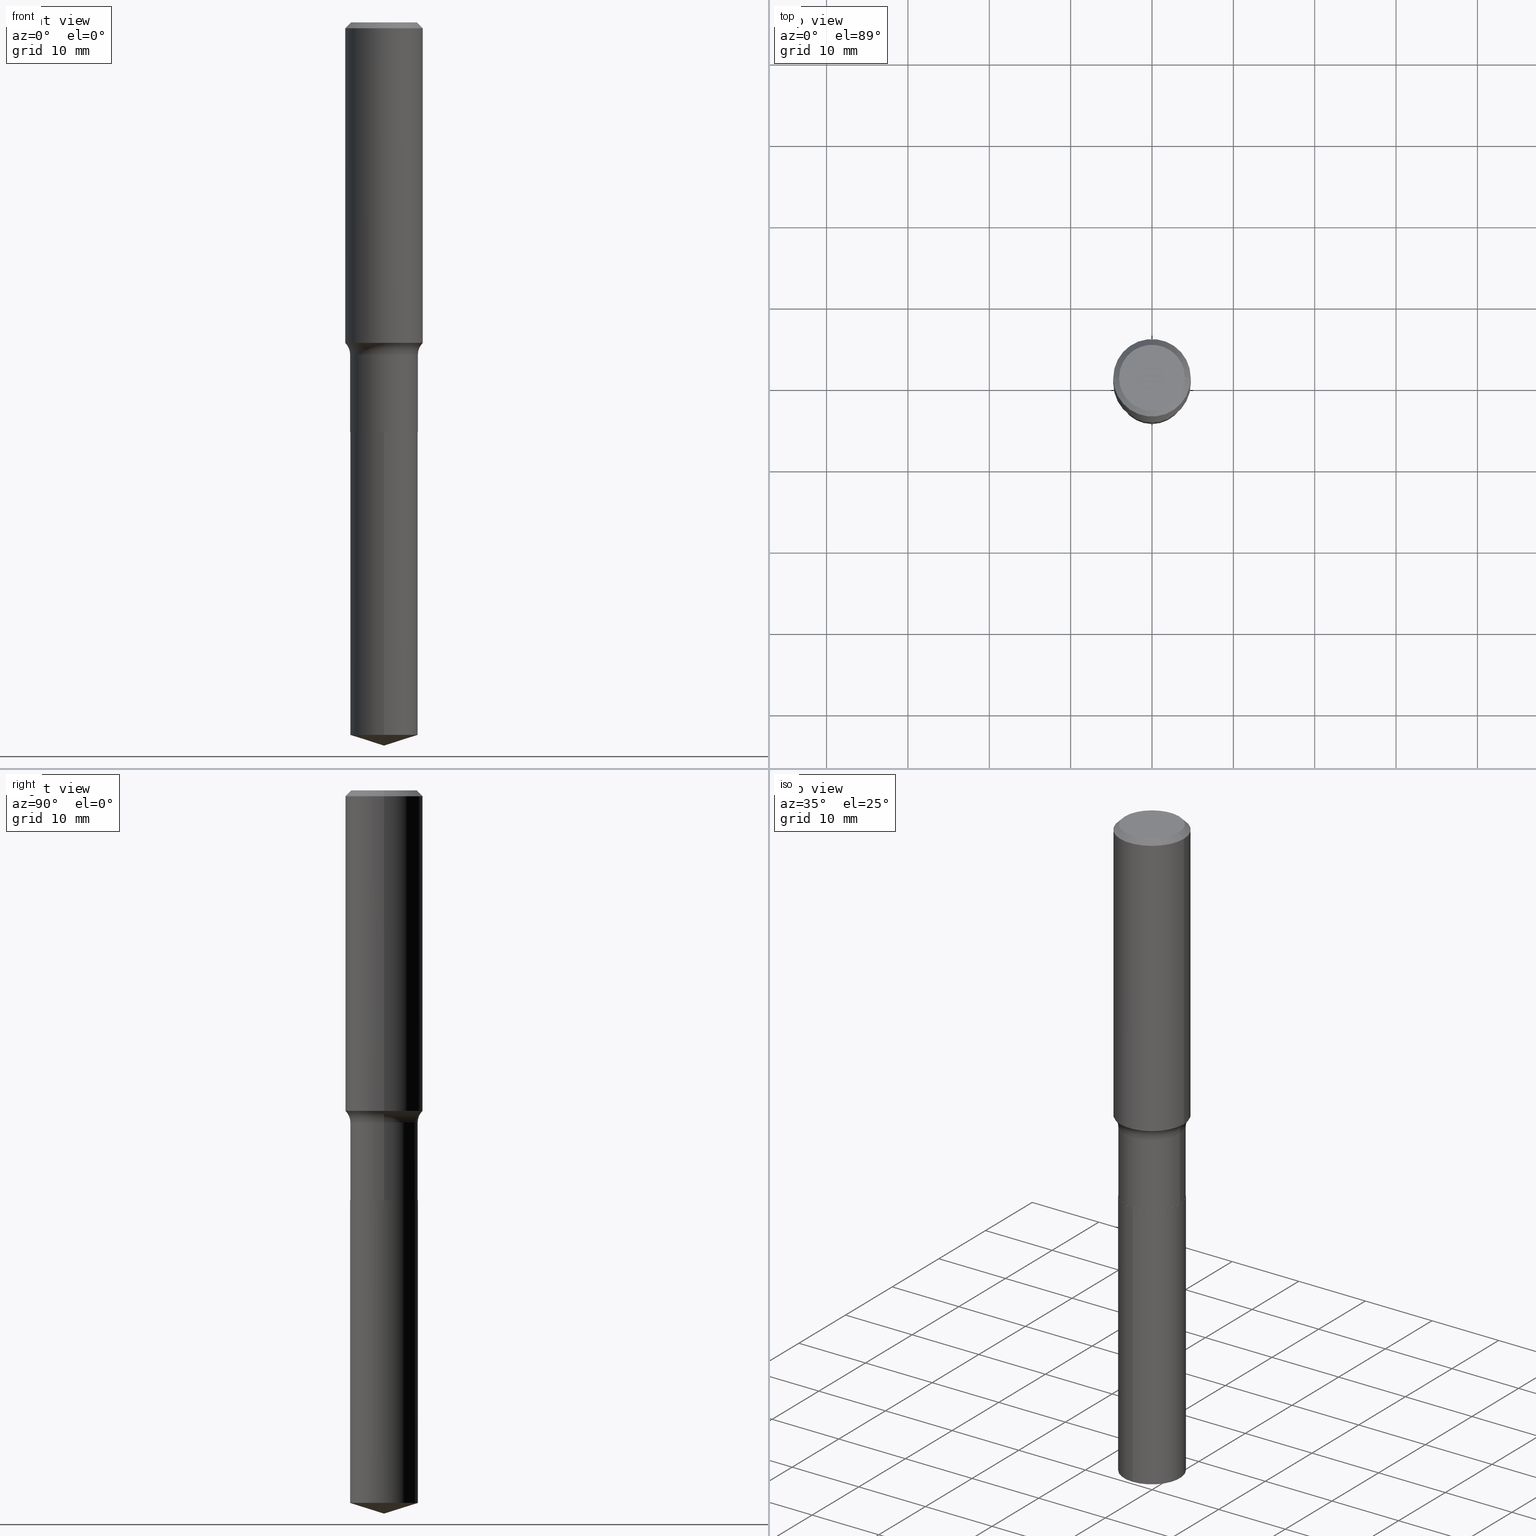
[diagram: canonical four-view strip — front | top / right | iso, engineering-drawing reading convention]
A machine part, canonical four-view strip (front | top / right | iso — engineering-drawing reading convention). The complete STEP part file that produces these views, byte-faithful:
ISO-10303-21;
HEADER;
FILE_DESCRIPTION (( 'STEP AP203' ),
    '1' );
FILE_NAME ('51350.STEP',
    '2024-04-19T12:50:37',
    ( '' ),
    ( '' ),
    'SwSTEP 2.0',
    'SolidWorks 2023',
    '' );
FILE_SCHEMA (( 'CONFIG_CONTROL_DESIGN' ));
ENDSEC;

DATA;
#1 = EDGE_CURVE ( 'NONE', #158, #292, #393, .T. ) ;
#2 = CARTESIAN_POINT ( 'NONE',  ( 3.929868371539513403E-29, -5.610810511520933351E-15, -1.606999999999999540 ) ) ;
#3 = ORIENTED_EDGE ( 'NONE', *, *, #244, .F. ) ;
#4 = FACE_OUTER_BOUND ( 'NONE', #288, .T. ) ;
#5 = VERTEX_POINT ( 'NONE', #474 ) ;
#6 = LINE ( 'NONE', #203, #468 ) ;
#7 = EDGE_LOOP ( 'NONE', ( #64, #153, #150, #65 ) ) ;
#8 = AXIS2_PLACEMENT_3D ( 'NONE', #143, #330, #149 ) ;
#9 = PLANE ( 'NONE',  #417 ) ;
#10 = ORIENTED_EDGE ( 'NONE', *, *, #117, .F. ) ;
#11 = ORIENTED_EDGE ( 'NONE', *, *, #200, .F. ) ;
#12 = CARTESIAN_POINT ( 'NONE',  ( 4.852543752113166066E-29, -6.928146420666452798E-15, -1.984299999999999731 ) ) ;
#13 = CARTESIAN_POINT ( 'NONE',  ( 3.793528331565033205E-29, -5.416153068292034593E-15, -1.551247892416518726 ) ) ;
#14 = CIRCLE ( 'NONE', #366, 0.1640500000000000014 ) ;
#15 = DIRECTION ( 'NONE',  ( -2.445468806185136597E-29, 3.491481338843145583E-15, 1.000000000000000000 ) ) ;
#16 = ADVANCED_FACE ( 'NONE', ( #252 ), #94, .T. ) ;
#17 = LINE ( 'NONE', #167, #53 ) ;
#18 = DIRECTION ( 'NONE',  ( 1.000000000000000000, -6.982962677686267499E-15, 4.876176775795935793E-29 ) ) ;
#19 = PERSON_AND_ORGANIZATION ( #235, #148 ) ;
#20 = DIRECTION ( 'NONE',  ( -2.445468806185136597E-29, 3.491481338843145583E-15, 1.000000000000000000 ) ) ;
#21 = CIRCLE ( 'NONE', #295, 0.1640499999999999459 ) ;
#22 = APPROVAL_PERSON_ORGANIZATION ( #26, #135, #25 ) ;
#23 = DIRECTION ( 'NONE',  ( 6.776566513254253404E-15, 0.9537169507482281539, 0.3007057995042689003 ) ) ;
#24 = ADVANCED_FACE ( 'NONE', ( #131 ), #250, .T. ) ;
#25 = APPROVAL_ROLE ( '' ) ;
#26 = PERSON_AND_ORGANIZATION ( #235, #148 ) ;
#27 = ORIENTED_EDGE ( 'NONE', *, *, #101, .F. ) ;
#28 = ADVANCED_FACE ( 'NONE', ( #318 ), #210, .T. ) ;
#29 = AXIS2_PLACEMENT_3D ( 'NONE', #276, #428, #89 ) ;
#30 = LOCAL_TIME ( 8, 50, 37.00000000000000000, #438 ) ;
#31 = DIRECTION ( 'NONE',  ( -1.000000000000000000, 7.105427357600997914E-15, 0.000000000000000000 ) ) ;
#32 = CC_DESIGN_DATE_AND_TIME_ASSIGNMENT ( #324, #473, ( #193 ) ) ;
#33 = DIRECTION ( 'NONE',  ( -2.445468806185136877E-29, 3.491481338843145188E-15, 1.000000000000000000 ) ) ;
#34 = DIRECTION ( 'NONE',  ( -2.445372018377083114E-29, 3.491619944493098232E-15, 1.000000000000000000 ) ) ;
#35 = ORIENTED_EDGE ( 'NONE', *, *, #465, .F. ) ;
#36 = AXIS2_PLACEMENT_3D ( 'NONE', #303, #157, #307 ) ;
#37 = CARTESIAN_POINT ( 'NONE',  ( -0.1640499999999999459, -5.102960237744538944E-15, -1.983799999999999786 ) ) ;
#38 = EDGE_LOOP ( 'NONE', ( #140, #142, #385, #254 ) ) ;
#39 = LINE ( 'NONE', #88, #211 ) ;
#40 = ORIENTED_EDGE ( 'NONE', *, *, #388, .F. ) ;
#41 = APPLICATION_CONTEXT ( 'configuration controlled 3d designs of mechanical parts and assemblies' ) ;
#42 = DIRECTION ( 'NONE',  ( -2.445468806185136597E-29, 3.491481338843145583E-15, 1.000000000000000000 ) ) ;
#43 = ADVANCED_FACE ( 'NONE', ( #396 ), #134, .T. ) ;
#44 = VERTEX_POINT ( 'NONE', #58 ) ;
#45 = AXIS2_PLACEMENT_3D ( 'NONE', #128, #192, #90 ) ;
#46 = DIRECTION ( 'NONE',  ( 6.982962677686265922E-15, 1.000000000000000000, -3.491619944493097838E-15 ) ) ;
#47 = EDGE_LOOP ( 'NONE', ( #416, #82, #332, #27 ) ) ;
#48 =( CONVERSION_BASED_UNIT ( 'INCH', #386 ) LENGTH_UNIT ( ) NAMED_UNIT ( #451 ) );
#49 = DIRECTION ( 'NONE',  ( -2.445468806185136597E-29, 3.491481338843145583E-15, 1.000000000000000000 ) ) ;
#50 = ADVANCED_FACE ( 'NONE', ( #207 ), #281, .T. ) ;
#51 = CARTESIAN_POINT ( 'NONE',  ( 0.1635500000000000009, -8.070209966602040664E-15, -1.984299999999999731 ) ) ;
#52 = DIRECTION ( 'NONE',  ( 1.000000000000000000, -6.982962677686265922E-15, 0.000000000000000000 ) ) ;
#53 = VECTOR ( 'NONE', #316, 39.37007874015748143 ) ;
#54 = COORDINATED_UNIVERSAL_TIME_OFFSET ( 5, 0, .BEHIND. ) ;
#55 = CC_DESIGN_APPROVAL ( #135, ( #193 ) ) ;
#56 = DIRECTION ( 'NONE',  ( 1.000000000000000000, -6.982962677686266711E-15, 0.000000000000000000 ) ) ;
#57 = PERSON_AND_ORGANIZATION_ROLE ( 'classification_officer' ) ;
#58 = CARTESIAN_POINT ( 'NONE',  ( 1.165645358014528773E-15, 0.1640499999999879555, -3.448275233684403140 ) ) ;
#59 = SHAPE_DEFINITION_REPRESENTATION ( #145, #439 ) ;
#60 = ADVANCED_FACE ( 'NONE', ( #472 ), #61, .T. ) ;
#61 = CYLINDRICAL_SURFACE ( 'NONE', #443, 0.1875000000000001110 ) ;
#62 = AXIS2_PLACEMENT_3D ( 'NONE', #96, #20, #18 ) ;
#63 = CIRCLE ( 'NONE', #8, 0.1593749999999999889 ) ;
#64 = ORIENTED_EDGE ( 'NONE', *, *, #225, .F. ) ;
#65 = ORIENTED_EDGE ( 'NONE', *, *, #444, .F. ) ;
#66 = EDGE_CURVE ( 'NONE', #373, #424, #163, .T. ) ;
#67 = DIRECTION ( 'NONE',  ( 2.438088387897960049E-29, -3.491481338843145188E-15, -1.000000000000000000 ) ) ;
#68 = AXIS2_PLACEMENT_3D ( 'NONE', #246, #399, #91 ) ;
#69 = AXIS2_PLACEMENT_3D ( 'NONE', #124, #430, #87 ) ;
#70 = CONICAL_SURFACE ( 'NONE', #36, 124.8659371009143086, 1.265363707695889905 ) ;
#71 = DIRECTION ( 'NONE',  ( -6.982962677686265922E-15, -1.000000000000000000, 3.500519750498725731E-15 ) ) ;
#72 = CARTESIAN_POINT ( 'NONE',  ( 0.1875000000000000555, -1.407503414721139514E-15, -0.02812500000000019151 ) ) ;
#73 = EDGE_LOOP ( 'NONE', ( #257, #197, #273, #188 ) ) ;
#74 = CARTESIAN_POINT ( 'NONE',  ( 6.877881017395743622E-31, -9.819791265496413635E-17, -0.02812500000000019151 ) ) ;
#75 = VECTOR ( 'NONE', #23, 39.37007874015748143 ) ;
#76 = CIRCLE ( 'NONE', #107, 0.1875000000000001943 ) ;
#77 = ORIENTED_EDGE ( 'NONE', *, *, #333, .F. ) ;
#78 = FACE_OUTER_BOUND ( 'NONE', #191, .T. ) ;
#79 = DIRECTION ( 'NONE',  ( -2.445468806185136597E-29, 3.491481338843145583E-15, 1.000000000000000000 ) ) ;
#80 = EDGE_CURVE ( 'NONE', #482, #44, #284, .T. ) ;
#81 = DIRECTION ( 'NONE',  ( -2.445468806185136597E-29, 3.491481338843145583E-15, 1.000000000000000000 ) ) ;
#82 = ORIENTED_EDGE ( 'NONE', *, *, #225, .T. ) ;
#83 = CARTESIAN_POINT ( 'NONE',  ( 3.929868371539514524E-29, -5.610810511520934140E-15, -1.606999999999999762 ) ) ;
#84 = ORIENTED_EDGE ( 'NONE', *, *, #152, .T. ) ;
#85 = AXIS2_PLACEMENT_3D ( 'NONE', #2, #367, #379 ) ;
#86 = DIRECTION ( 'NONE',  ( 1.000000000000000000, -6.982962677686265922E-15, 4.876176775795935793E-29 ) ) ;
#87 = DIRECTION ( 'NONE',  ( -6.982962677686265133E-15, -1.000000000000000000, 3.330506545156066257E-15 ) ) ;
#88 = CARTESIAN_POINT ( 'NONE',  ( -0.1875000000000000555, 1.211107589411211094E-15, -0.02812500000000019151 ) ) ;
#89 = DIRECTION ( 'NONE',  ( 1.000000000000000000, -6.982962677686265922E-15, 0.000000000000000000 ) ) ;
#90 = DIRECTION ( 'NONE',  ( 1.000000000000000000, -6.982962677686267499E-15, 4.876227444496879000E-29 ) ) ;
#91 = DIRECTION ( 'NONE',  ( -6.982962677686265133E-15, -1.000000000000000000, 3.330506545156066257E-15 ) ) ;
#92 = VECTOR ( 'NONE', #33, 39.37007874015748143 ) ;
#93 = PERSON_AND_ORGANIZATION ( #235, #148 ) ;
#94 = CYLINDRICAL_SURFACE ( 'NONE', #173, 0.1640499999999999459 ) ;
#95 = CALENDAR_DATE ( 2024, 19, 4 ) ;
#96 = CARTESIAN_POINT ( 'NONE',  ( 0.000000000000000000, 0.000000000000000000, 0.000000000000000000 ) ) ;
#97 = APPROVAL_DATE_TIME ( #99, #135 ) ;
#98 = ORIENTED_EDGE ( 'NONE', *, *, #152, .F. ) ;
#99 = DATE_AND_TIME ( #290, #187 ) ;
#100 = CONICAL_SURFACE ( 'NONE', #304, 0.1635500000000000009, 0.7853981633975165577 ) ;
#101 = EDGE_CURVE ( 'NONE', #158, #179, #440, .T. ) ;
#102 = APPROVAL_DATE_TIME ( #392, #104 ) ;
#103 = EDGE_LOOP ( 'NONE', ( #365, #263, #229, #77 ) ) ;
#104 = APPROVAL ( #441, 'UNSPECIFIED' ) ;
#105 = DIRECTION ( 'NONE',  ( -2.445468806185136597E-29, 3.491481338843145583E-15, 1.000000000000000000 ) ) ;
#106 = AXIS2_PLACEMENT_3D ( 'NONE', #126, #81, #119 ) ;
#107 = AXIS2_PLACEMENT_3D ( 'NONE', #13, #350, #391 ) ;
#108 = CARTESIAN_POINT ( 'NONE',  ( 0.2420499999999999041, -7.301036627654892271E-15, -1.606999999999999540 ) ) ;
#109 = ADVANCED_FACE ( 'NONE', ( #127 ), #359, .T. ) ;
#110 = VERTEX_POINT ( 'NONE', #279 ) ;
#111 = CARTESIAN_POINT ( 'NONE',  ( 1.165645358014492485E-15, 0.1640499999999930625, -1.984300000000000175 ) ) ;
#112 = ORIENTED_EDGE ( 'NONE', *, *, #325, .T. ) ;
#113 = CARTESIAN_POINT ( 'NONE',  ( -0.1875000000000000555, -1.424907860923310518E-15, -0.02812500000000019151 ) ) ;
#114 = CLOSED_SHELL ( 'NONE', ( #139, #28, #60, #299, #16, #43, #161, #50, #291, #312, #455, #109 ) ) ;
#115 = VECTOR ( 'NONE', #190, 39.37007874015748143 ) ;
#116 = ORIENTED_EDGE ( 'NONE', *, *, #427, .T. ) ;
#117 = EDGE_CURVE ( 'NONE', #344, #110, #180, .T. ) ;
#118 = PRODUCT_DEFINITION_FORMATION_WITH_SPECIFIED_SOURCE ( 'ANY', '', #413, .NOT_KNOWN. ) ;
#119 = DIRECTION ( 'NONE',  ( 1.000000000000000000, -6.982962677686266711E-15, 0.000000000000000000 ) ) ;
#120 = ORIENTED_EDGE ( 'NONE', *, *, #66, .F. ) ;
#121 = CARTESIAN_POINT ( 'NONE',  ( -0.1635500000000000009, -5.766053776330809134E-15, -1.984299999999999731 ) ) ;
#122 = ORIENTED_EDGE ( 'NONE', *, *, #182, .T. ) ;
#123 = DIRECTION ( 'NONE',  ( 1.000000000000000000, -6.982962677686266711E-15, 0.000000000000000000 ) ) ;
#124 = CARTESIAN_POINT ( 'NONE',  ( 4.852543752113166066E-29, -6.928146420666452798E-15, -1.984299999999999731 ) ) ;
#125 = AXIS2_PLACEMENT_3D ( 'NONE', #83, #390, #123 ) ;
#126 = CARTESIAN_POINT ( 'NONE',  ( 4.851321017710073264E-29, -6.926400679997031294E-15, -1.983799999999999786 ) ) ;
#127 = FACE_OUTER_BOUND ( 'NONE', #38, .T. ) ;
#128 = CARTESIAN_POINT ( 'NONE',  ( -7.955031918821655674E-47, 1.135767727816384611E-32, 3.252968060235159768E-18 ) ) ;
#129 = CARTESIAN_POINT ( 'NONE',  ( 0.1593749999999999889, -1.238966577815982495E-15, 3.252968060243383104E-18 ) ) ;
#130 = CALENDAR_DATE ( 2024, 19, 4 ) ;
#131 = FACE_OUTER_BOUND ( 'NONE', #300, .T. ) ;
#132 = EDGE_CURVE ( 'NONE', #233, #216, #165, .T. ) ;
#133 = AXIS2_PLACEMENT_3D ( 'NONE', #437, #310, #466 ) ;
#134 = CYLINDRICAL_SURFACE ( 'NONE', #62, 0.1640499999999999459 ) ;
#135 = APPROVAL ( #479, 'UNSPECIFIED' ) ;
#136 = PERSON_AND_ORGANIZATION ( #235, #148 ) ;
#137 = CARTESIAN_POINT ( 'NONE',  ( 3.929868371539513403E-29, -5.610810511520933351E-15, -1.606999999999999540 ) ) ;
#138 = PERSON_AND_ORGANIZATION ( #235, #148 ) ;
#139 = ADVANCED_FACE ( 'NONE', ( #241 ), #100, .T. ) ;
#140 = ORIENTED_EDGE ( 'NONE', *, *, #433, .F. ) ;
#141 = COORDINATED_UNIVERSAL_TIME_OFFSET ( 5, 0, .BEHIND. ) ;
#142 = ORIENTED_EDGE ( 'NONE', *, *, #278, .T. ) ;
#143 = CARTESIAN_POINT ( 'NONE',  ( -7.955031918821655674E-47, 1.135767727816384611E-32, 3.252968060235159768E-18 ) ) ;
#144 = EDGE_CURVE ( 'NONE', #216, #233, #76, .T. ) ;
#145 = PRODUCT_DEFINITION_SHAPE ( 'NONE', 'NONE',  #193 ) ;
#146 = PLANE ( 'NONE',  #435 ) ;
#147 = CONICAL_SURFACE ( 'NONE', #410, 0.1875000000000000555, 0.7853981633974458365 ) ;
#148 = ORGANIZATION ( 'UNSPECIFIED', 'UNSPECIFIED', '' ) ;
#149 = DIRECTION ( 'NONE',  ( 1.000000000000000000, -6.982962677686267499E-15, 4.876227444496879000E-29 ) ) ;
#150 = ORIENTED_EDGE ( 'NONE', *, *, #101, .T. ) ;
#151 = DIRECTION ( 'NONE',  ( -1.000000000000000000, 6.982962677686265922E-15, -4.876176775795935793E-29 ) ) ;
#152 = EDGE_CURVE ( 'NONE', #156, #265, #17, .T. ) ;
#153 = ORIENTED_EDGE ( 'NONE', *, *, #398, .T. ) ;
#154 = FACE_OUTER_BOUND ( 'NONE', #213, .T. ) ;
#155 = AXIS2_PLACEMENT_3D ( 'NONE', #266, #34, #298 ) ;
#156 = VERTEX_POINT ( 'NONE', #129 ) ;
#157 = DIRECTION ( 'NONE',  ( -2.445372018377083114E-29, 3.491619944493098232E-15, 1.000000000000000000 ) ) ;
#158 = VERTEX_POINT ( 'NONE', #432 ) ;
#159 =( LENGTH_UNIT ( ) NAMED_UNIT ( * ) SI_UNIT ( $, .METRE. ) );
#160 = EDGE_LOOP ( 'NONE', ( #329, #422 ) ) ;
#161 = ADVANCED_FACE ( 'NONE', ( #262 ), #450, .F. ) ;
#162 = CARTESIAN_POINT ( 'NONE',  ( 3.929868371539514524E-29, -5.610810511520934140E-15, -1.606999999999999762 ) ) ;
#163 = CIRCLE ( 'NONE', #226, 0.1635500000000000009 ) ;
#164 = DIRECTION ( 'NONE',  ( -2.445468806185136597E-29, 3.491481338843145583E-15, 1.000000000000000000 ) ) ;
#165 = CIRCLE ( 'NONE', #29, 0.1875000000000001943 ) ;
#166 = DIRECTION ( 'NONE',  ( 2.445372018377082834E-29, -3.491619944493097838E-15, -1.000000000000000000 ) ) ;
#167 = CARTESIAN_POINT ( 'NONE',  ( 0.1875000000000000555, -1.384541287237126871E-15, -0.02812500000000019151 ) ) ;
#168 = CARTESIAN_POINT ( 'NONE',  ( 0.000000000000000000, 0.000000000000000000, 0.000000000000000000 ) ) ;
#169 = DESIGN_CONTEXT ( 'detailed design', #41, 'design' ) ;
#170 = DIRECTION ( 'NONE',  ( 1.000000000000000000, -6.982962677686266711E-15, 4.876176775795935793E-29 ) ) ;
#171 = CALENDAR_DATE ( 2024, 19, 4 ) ;
#172 = CARTESIAN_POINT ( 'NONE',  ( 0.000000000000000000, 0.000000000000000000, 0.000000000000000000 ) ) ;
#173 = AXIS2_PLACEMENT_3D ( 'NONE', #208, #164, #402 ) ;
#174 = DIRECTION ( 'NONE',  ( -6.982962677686266711E-15, -1.000000000000000000, 3.491481338843145583E-15 ) ) ;
#175 = DATE_AND_TIME ( #251, #405 ) ;
#176 = ORIENTED_EDGE ( 'NONE', *, *, #278, .F. ) ;
#177 = DIRECTION ( 'NONE',  ( 0.000000000000000000, 0.000000000000000000, 1.000000000000000000 ) ) ;
#178 = CC_DESIGN_PERSON_AND_ORGANIZATION_ASSIGNMENT ( #397, #57, ( #436 ) ) ;
#179 = VERTEX_POINT ( 'NONE', #335 ) ;
#180 = CIRCLE ( 'NONE', #69, 0.1640500000000000014 ) ;
#181 = LINE ( 'NONE', #452, #92 ) ;
#182 = EDGE_CURVE ( 'NONE', #233, #265, #181, .T. ) ;
#183 = DIRECTION ( 'NONE',  ( 1.000000000000000000, -6.982962677686265922E-15, 0.000000000000000000 ) ) ;
#184 = ORIENTED_EDGE ( 'NONE', *, *, #200, .T. ) ;
#185 = DIRECTION ( 'NONE',  ( -2.445468806185136597E-29, 3.491481338843145583E-15, 1.000000000000000000 ) ) ;
#186 = AXIS2_PLACEMENT_3D ( 'NONE', #108, #174, #258 ) ;
#187 = LOCAL_TIME ( 8, 50, 37.00000000000000000, #141 ) ;
#188 = ORIENTED_EDGE ( 'NONE', *, *, #182, .F. ) ;
#189 = EDGE_CURVE ( 'NONE', #44, #239, #14, .T. ) ;
#190 = DIRECTION ( 'NONE',  ( -2.445468806185136877E-29, 3.491481338843145188E-15, 1.000000000000000000 ) ) ;
#191 = EDGE_LOOP ( 'NONE', ( #338, #362, #462, #10 ) ) ;
#192 = DIRECTION ( 'NONE',  ( -2.445468806185136597E-29, 3.491481338843145583E-15, 1.000000000000000000 ) ) ;
#193 = PRODUCT_DEFINITION ( 'UNKNOWN', '', #118, #169 ) ;
#194 = ORIENTED_EDGE ( 'NONE', *, *, #189, .F. ) ;
#195 = FACE_OUTER_BOUND ( 'NONE', #231, .T. ) ;
#196 = CONICAL_SURFACE ( 'NONE', #313, 124.8659371009143086, 1.265363707695889905 ) ;
#197 = ORIENTED_EDGE ( 'NONE', *, *, #465, .T. ) ;
#198 = DIRECTION ( 'NONE',  ( -0.7071067811865957564, 7.493145998870527710E-15, 0.7071067811864992780 ) ) ;
#199 = ORIENTED_EDGE ( 'NONE', *, *, #363, .T. ) ;
#200 = EDGE_CURVE ( 'NONE', #5, #156, #63, .T. ) ;
#201 = CARTESIAN_POINT ( 'NONE',  ( -0.1635500000000000009, -5.763404549156697933E-15, -1.984299999999999731 ) ) ;
#202 = DIRECTION ( 'NONE',  ( 1.000000000000000000, -6.982962677686265922E-15, 0.000000000000000000 ) ) ;
#203 = CARTESIAN_POINT ( 'NONE',  ( -0.1875000000000001110, 1.332267629550188637E-15, -9.223003294227953596E-30 ) ) ;
#204 = CARTESIAN_POINT ( 'NONE',  ( 0.1640499999999999459, -1.145555027274431860E-15, 7.999368000693230140E-30 ) ) ;
#205 = AXIS2_PLACEMENT_3D ( 'NONE', #218, #369, #31 ) ;
#206 = APPLICATION_PROTOCOL_DEFINITION ( 'international standard', 'config_control_design', 1994, #371 ) ;
#207 = FACE_OUTER_BOUND ( 'NONE', #486, .T. ) ;
#208 = CARTESIAN_POINT ( 'NONE',  ( 0.000000000000000000, 0.000000000000000000, 0.000000000000000000 ) ) ;
#209 = DIRECTION ( 'NONE',  ( -2.445468806185136597E-29, 3.491481338843145583E-15, 1.000000000000000000 ) ) ;
#210 = CONICAL_SURFACE ( 'NONE', #490, 0.1875000000000000555, 0.7853981633974458365 ) ;
#211 = VECTOR ( 'NONE', #339, 39.37007874015748143 ) ;
#212 = AXIS2_PLACEMENT_3D ( 'NONE', #168, #177, #317 ) ;
#213 = EDGE_LOOP ( 'NONE', ( #120, #176 ) ) ;
#214 = MANIFOLD_SOLID_BREP ( 'Body-Move/Copy2[2]', #114 ) ;
#215 =( NAMED_UNIT ( * ) PLANE_ANGLE_UNIT ( ) SI_UNIT ( $, .RADIAN. ) );
#216 = VERTEX_POINT ( 'NONE', #409 ) ;
#217 = EDGE_LOOP ( 'NONE', ( #98, #11, #420, #343 ) ) ;
#218 = CARTESIAN_POINT ( 'NONE',  ( -0.2420499999999999041, -3.890941819613610941E-15, -1.606999999999999540 ) ) ;
#219 = ORIENTED_EDGE ( 'NONE', *, *, #370, .F. ) ;
#220 = CARTESIAN_POINT ( 'NONE',  ( -3.977515959410827837E-47, 5.678838639081923055E-33, 1.626484030117579884E-18 ) ) ;
#221 = CC_DESIGN_DATE_AND_TIME_ASSIGNMENT ( #175, #357, ( #436 ) ) ;
#222 = ORIENTED_EDGE ( 'NONE', *, *, #471, .F. ) ;
#223 = CARTESIAN_POINT ( 'NONE',  ( -0.1640499999999999459, 1.165645358014443970E-15, -8.069513015563170763E-30 ) ) ;
#224 = EDGE_LOOP ( 'NONE', ( #368, #453, #308, #116 ) ) ;
#225 = EDGE_CURVE ( 'NONE', #292, #336, #264, .T. ) ;
#226 = AXIS2_PLACEMENT_3D ( 'NONE', #320, #209, #52 ) ;
#227 = DIRECTION ( 'NONE',  ( -1.000000000000000000, 6.982962677686265922E-15, 0.000000000000000000 ) ) ;
#228 = CIRCLE ( 'NONE', #237, 0.1635500000000000009 ) ;
#229 = ORIENTED_EDGE ( 'NONE', *, *, #1, .F. ) ;
#230 = CYLINDRICAL_SURFACE ( 'NONE', #477, 0.1640500000000000014 ) ;
#231 = EDGE_LOOP ( 'NONE', ( #270, #306, #383 ) ) ;
#232 = CARTESIAN_POINT ( 'NONE',  ( 8.558802064319789219E-29, -1.222066980572584263E-14, -3.500000000000000000 ) ) ;
#233 = VERTEX_POINT ( 'NONE', #414 ) ;
#234 = CARTESIAN_POINT ( 'NONE',  ( 8.558802064319789219E-29, -1.222066980572584421E-14, -3.500000000000000000 ) ) ;
#235 = PERSON ( 'UNSPECIFIED', 'UNSPECIFIED', 'UNSPECIFIED', ('UNSPECIFIED'), ('UNSPECIFIED'), ('UNSPECIFIED') ) ;
#236 = EDGE_CURVE ( 'NONE', #44, #344, #372, .T. ) ;
#237 = AXIS2_PLACEMENT_3D ( 'NONE', #323, #185, #183 ) ;
#238 = VECTOR ( 'NONE', #348, 39.37007874015748143 ) ;
#239 = VERTEX_POINT ( 'NONE', #449 ) ;
#240 = FACE_OUTER_BOUND ( 'NONE', #160, .T. ) ;
#241 = FACE_OUTER_BOUND ( 'NONE', #103, .T. ) ;
#242 = DIRECTION ( 'NONE',  ( 1.000000000000000000, -6.982962677686265922E-15, 0.000000000000000000 ) ) ;
#243 = DIRECTION ( 'NONE',  ( 2.445468806185136597E-29, -3.491481338843145583E-15, -1.000000000000000000 ) ) ;
#244 = EDGE_CURVE ( 'NONE', #233, #179, #289, .T. ) ;
#245 = LINE ( 'NONE', #121, #275 ) ;
#246 = CARTESIAN_POINT ( 'NONE',  ( 4.852543752113166066E-29, -6.928146420666452798E-15, -1.984299999999999731 ) ) ;
#247 = TOROIDAL_SURFACE ( 'NONE', #425, 0.2420499999999999041, 0.07799999999999997213 ) ;
#248 =( GEOMETRIC_REPRESENTATION_CONTEXT ( 3 ) GLOBAL_UNCERTAINTY_ASSIGNED_CONTEXT ( ( #352 ) ) GLOBAL_UNIT_ASSIGNED_CONTEXT ( ( #48, #215, #351 ) ) REPRESENTATION_CONTEXT ( 'NONE', 'WORKASPACE' ) );
#249 = SECURITY_CLASSIFICATION_LEVEL ( 'unclassified' ) ;
#250 = CYLINDRICAL_SURFACE ( 'NONE', #68, 0.1640500000000000014 ) ;
#251 = CALENDAR_DATE ( 2024, 19, 4 ) ;
#252 = FACE_OUTER_BOUND ( 'NONE', #47, .T. ) ;
#253 = PERSON_AND_ORGANIZATION_ROLE ( 'creator' ) ;
#254 = ORIENTED_EDGE ( 'NONE', *, *, #398, .F. ) ;
#255 = CC_DESIGN_APPROVAL ( #104, ( #118 ) ) ;
#256 = APPROVAL_DATE_TIME ( #400, #382 ) ;
#257 = ORIENTED_EDGE ( 'NONE', *, *, #132, .T. ) ;
#258 = DIRECTION ( 'NONE',  ( 1.000000000000000000, -6.982962677686258033E-15, 0.000000000000000000 ) ) ;
#259 = CC_DESIGN_PERSON_AND_ORGANIZATION_ASSIGNMENT ( #283, #481, ( #193 ) ) ;
#260 = AXIS2_PLACEMENT_3D ( 'NONE', #272, #421, #429 ) ;
#261 = FACE_OUTER_BOUND ( 'NONE', #340, .T. ) ;
#262 = FACE_OUTER_BOUND ( 'NONE', #224, .T. ) ;
#263 = ORIENTED_EDGE ( 'NONE', *, *, #433, .T. ) ;
#264 = LINE ( 'NONE', #223, #115 ) ;
#265 = VERTEX_POINT ( 'NONE', #72 ) ;
#266 = CARTESIAN_POINT ( 'NONE',  ( 4.852543752113166066E-29, -6.928146420666452798E-15, -1.984299999999999731 ) ) ;
#267 = CIRCLE ( 'NONE', #45, 0.1593749999999999889 ) ;
#268 = CARTESIAN_POINT ( 'NONE',  ( 4.851321017710073264E-29, -6.926400679997031294E-15, -1.983799999999999786 ) ) ;
#269 = DIRECTION ( 'NONE',  ( 1.000000000000000000, -6.982962677686265922E-15, 0.000000000000000000 ) ) ;
#270 = ORIENTED_EDGE ( 'NONE', *, *, #412, .F. ) ;
#271 = EDGE_CURVE ( 'NONE', #110, #344, #445, .T. ) ;
#272 = CARTESIAN_POINT ( 'NONE',  ( 8.432507824162055663E-29, -1.203979154484285779E-14, -3.448275233684402696 ) ) ;
#273 = ORIENTED_EDGE ( 'NONE', *, *, #404, .F. ) ;
#274 = DIRECTION ( 'NONE',  ( -6.659769872151627355E-15, -0.9537169507482260444, 0.3007057995042755061 ) ) ;
#275 = VECTOR ( 'NONE', #198, 39.37007874015748143 ) ;
#276 = CARTESIAN_POINT ( 'NONE',  ( 3.793528331565033205E-29, -5.416153068292034593E-15, -1.551247892416518726 ) ) ;
#277 = CARTESIAN_POINT ( 'NONE',  ( 4.852543752113166066E-29, -6.928146420666452798E-15, -1.984299999999999731 ) ) ;
#278 = EDGE_CURVE ( 'NONE', #424, #373, #228, .T. ) ;
#279 = CARTESIAN_POINT ( 'NONE',  ( -1.145555027274383345E-15, -0.1640500000000069125, -1.984299999999999065 ) ) ;
#280 = DIRECTION ( 'NONE',  ( -2.445468806185136597E-29, 3.491481338843145583E-15, 1.000000000000000000 ) ) ;
#281 = CYLINDRICAL_SURFACE ( 'NONE', #374, 0.1875000000000001110 ) ;
#282 = DIRECTION ( 'NONE',  ( -2.445468806185136877E-29, 3.491481338843145188E-15, 1.000000000000000000 ) ) ;
#283 = PERSON_AND_ORGANIZATION ( #235, #148 ) ;
#284 = LINE ( 'NONE', #478, #75 ) ;
#285 = ADVANCED_FACE ( 'NONE', ( #261 ), #196, .T. ) ;
#286 = DIRECTION ( 'NONE',  ( -2.445372018377083114E-29, 3.491619944493098232E-15, 1.000000000000000000 ) ) ;
#287 = APPROVAL_STATUS ( 'not_yet_approved' ) ;
#288 = EDGE_LOOP ( 'NONE', ( #184, #377 ) ) ;
#289 = CIRCLE ( 'NONE', #186, 0.07799999999999999989 ) ;
#290 = CALENDAR_DATE ( 2024, 19, 4 ) ;
#291 = ADVANCED_FACE ( 'NONE', ( #487 ), #147, .T. ) ;
#292 = VERTEX_POINT ( 'NONE', #37 ) ;
#293 = VERTEX_POINT ( 'NONE', #113 ) ;
#294 = DIRECTION ( 'NONE',  ( 0.7071067811865957564, -2.468850131082761932E-15, 0.7071067811864992780 ) ) ;
#295 = AXIS2_PLACEMENT_3D ( 'NONE', #162, #15, #315 ) ;
#296 = APPROVAL_PERSON_ORGANIZATION ( #136, #104, #476 ) ;
#297 = DIRECTION ( 'NONE',  ( -6.982962677686265133E-15, -1.000000000000000000, 3.330506545156066257E-15 ) ) ;
#298 = DIRECTION ( 'NONE',  ( -6.982962677686265133E-15, -1.000000000000000000, 3.330506545156066257E-15 ) ) ;
#299 = ADVANCED_FACE ( 'NONE', ( #337 ), #247, .F. ) ;
#300 = EDGE_LOOP ( 'NONE', ( #199, #447, #302, #222 ) ) ;
#301 = CARTESIAN_POINT ( 'NONE',  ( 0.1635500000000000009, -8.070209966602040664E-15, -1.984299999999999731 ) ) ;
#302 = ORIENTED_EDGE ( 'NONE', *, *, #271, .F. ) ;
#303 = CARTESIAN_POINT ( 'NONE',  ( -8.771549479211627054E-28, 1.252449573748629302E-13, 35.87007874015748143 ) ) ;
#304 = AXIS2_PLACEMENT_3D ( 'NONE', #387, #49, #202 ) ;
#305 = CC_DESIGN_SECURITY_CLASSIFICATION ( #436, ( #118 ) ) ;
#306 = ORIENTED_EDGE ( 'NONE', *, *, #80, .T. ) ;
#307 = DIRECTION ( 'NONE',  ( -6.982962677686265922E-15, -1.000000000000000000, 3.500519750498725731E-15 ) ) ;
#308 = ORIENTED_EDGE ( 'NONE', *, *, #244, .T. ) ;
#309 = CARTESIAN_POINT ( 'NONE',  ( 4.852543752113166066E-29, -6.928146420666452798E-15, -1.984299999999999731 ) ) ;
#310 = DIRECTION ( 'NONE',  ( -2.445468806185136597E-29, 3.491481338843145583E-15, 1.000000000000000000 ) ) ;
#311 = LINE ( 'NONE', #463, #238 ) ;
#312 = ADVANCED_FACE ( 'NONE', ( #4 ), #146, .F. ) ;
#313 = AXIS2_PLACEMENT_3D ( 'NONE', #454, #331, #71 ) ;
#314 = DIRECTION ( 'NONE',  ( 1.000000000000000000, -6.982962677686266711E-15, 4.876176775795935793E-29 ) ) ;
#315 = DIRECTION ( 'NONE',  ( 1.000000000000000000, -6.982962677686266711E-15, 0.000000000000000000 ) ) ;
#316 = DIRECTION ( 'NONE',  ( 0.7071067811865457964, -7.319954787623249734E-15, -0.7071067811865492381 ) ) ;
#317 = DIRECTION ( 'NONE',  ( 1.000000000000000000, 0.000000000000000000, 0.000000000000000000 ) ) ;
#318 = FACE_OUTER_BOUND ( 'NONE', #458, .T. ) ;
#319 = CIRCLE ( 'NONE', #106, 0.1640499999999999459 ) ;
#320 = CARTESIAN_POINT ( 'NONE',  ( 4.852543752113166066E-29, -6.928146420666452798E-15, -1.984299999999999731 ) ) ;
#321 = AXIS2_PLACEMENT_3D ( 'NONE', #461, #42, #269 ) ;
#322 = PERSON_AND_ORGANIZATION_ROLE ( 'design_owner' ) ;
#323 = CARTESIAN_POINT ( 'NONE',  ( 4.852543752113166066E-29, -6.928146420666452798E-15, -1.984299999999999731 ) ) ;
#324 = DATE_AND_TIME ( #95, #328 ) ;
#325 = EDGE_CURVE ( 'NONE', #216, #336, #349, .T. ) ;
#326 = ORIENTED_EDGE ( 'NONE', *, *, #444, .T. ) ;
#327 = CIRCLE ( 'NONE', #394, 0.1875000000000000555 ) ;
#328 = LOCAL_TIME ( 8, 50, 37.00000000000000000, #54 ) ;
#329 = ORIENTED_EDGE ( 'NONE', *, *, #271, .T. ) ;
#330 = DIRECTION ( 'NONE',  ( -2.445468806185136597E-29, 3.491481338843145583E-15, 1.000000000000000000 ) ) ;
#331 = DIRECTION ( 'NONE',  ( -2.445372018377083114E-29, 3.491619944493098232E-15, 1.000000000000000000 ) ) ;
#332 = ORIENTED_EDGE ( 'NONE', *, *, #427, .F. ) ;
#333 = EDGE_CURVE ( 'NONE', #373, #158, #457, .T. ) ;
#334 = CIRCLE ( 'NONE', #125, 0.1640499999999999459 ) ;
#335 = CARTESIAN_POINT ( 'NONE',  ( 0.1640499999999999459, -6.756365538795365803E-15, -1.606999999999999762 ) ) ;
#336 = VERTEX_POINT ( 'NONE', #419 ) ;
#337 = FACE_OUTER_BOUND ( 'NONE', #408, .T. ) ;
#338 = ORIENTED_EDGE ( 'NONE', *, *, #236, .F. ) ;
#339 = DIRECTION ( 'NONE',  ( -0.7071067811865457964, 2.468850131082238917E-15, -0.7071067811865492381 ) ) ;
#340 = EDGE_LOOP ( 'NONE', ( #380, #492, #194 ) ) ;
#341 = PLANE ( 'NONE',  #467 ) ;
#342 = CIRCLE ( 'NONE', #321, 0.1875000000000000555 ) ;
#343 = ORIENTED_EDGE ( 'NONE', *, *, #378, .T. ) ;
#344 = VERTEX_POINT ( 'NONE', #489 ) ;
#345 = DIRECTION ( 'NONE',  ( -2.445372018377083114E-29, 3.491619944493098232E-15, 1.000000000000000000 ) ) ;
#346 = DIRECTION ( 'NONE',  ( -1.000000000000000000, 6.982962677686265922E-15, 0.000000000000000000 ) ) ;
#347 = ADVANCED_FACE ( 'NONE', ( #78 ), #230, .T. ) ;
#348 = DIRECTION ( 'NONE',  ( -2.445372018377082834E-29, 3.491619944493097838E-15, 1.000000000000000000 ) ) ;
#349 = CIRCLE ( 'NONE', #205, 0.07799999999999999989 ) ;
#350 = DIRECTION ( 'NONE',  ( -2.445468806185136597E-29, 3.491481338843145583E-15, 1.000000000000000000 ) ) ;
#351 =( NAMED_UNIT ( * ) SI_UNIT ( $, .STERADIAN. ) SOLID_ANGLE_UNIT ( ) );
#352 = UNCERTAINTY_MEASURE_WITH_UNIT (LENGTH_MEASURE( 1.000000000000000082E-05 ), #48, 'distance_accuracy_value', 'NONE');
#353 = CARTESIAN_POINT ( 'NONE',  ( 0.000000000000000000, 0.000000000000000000, 0.000000000000000000 ) ) ;
#354 = COORDINATED_UNIVERSAL_TIME_OFFSET ( 5, 0, .BEHIND. ) ;
#355 = ADVANCED_FACE ( 'NONE', ( #240 ), #9, .F. ) ;
#356 = DIRECTION ( 'NONE',  ( -2.445468806185136597E-29, 3.491481338843145583E-15, 1.000000000000000000 ) ) ;
#357 = DATE_TIME_ROLE ( 'classification_date' ) ;
#358 = AXIS2_PLACEMENT_3D ( 'NONE', #268, #79, #56 ) ;
#359 = CONICAL_SURFACE ( 'NONE', #133, 0.1635500000000000009, 0.7853981633975165577 ) ;
#360 = CARTESIAN_POINT ( 'NONE',  ( 6.877881017395743622E-31, -9.819791265496413635E-17, -0.02812500000000019151 ) ) ;
#361 = CC_DESIGN_PERSON_AND_ORGANIZATION_ASSIGNMENT ( #93, #322, ( #413 ) ) ;
#362 = ORIENTED_EDGE ( 'NONE', *, *, #189, .T. ) ;
#363 = EDGE_CURVE ( 'NONE', #239, #44, #484, .T. ) ;
#364 = APPLICATION_PROTOCOL_DEFINITION ( 'international standard', 'config_control_design', 1994, #41 ) ;
#365 = ORIENTED_EDGE ( 'NONE', *, *, #66, .T. ) ;
#366 = AXIS2_PLACEMENT_3D ( 'NONE', #411, #286, #297 ) ;
#367 = DIRECTION ( 'NONE',  ( -2.445468806185136597E-29, 3.491481338843145583E-15, 1.000000000000000000 ) ) ;
#368 = ORIENTED_EDGE ( 'NONE', *, *, #325, .F. ) ;
#369 = DIRECTION ( 'NONE',  ( 7.105427357601001859E-15, 1.000000000000000000, -3.491481338843145583E-15 ) ) ;
#370 = EDGE_CURVE ( 'NONE', #156, #5, #267, .T. ) ;
#371 = APPLICATION_CONTEXT ( 'configuration controlled 3d designs of mechanical parts and assemblies' ) ;
#372 = LINE ( 'NONE', #111, #375 ) ;
#373 = VERTEX_POINT ( 'NONE', #51 ) ;
#374 = AXIS2_PLACEMENT_3D ( 'NONE', #353, #356, #314 ) ;
#375 = VECTOR ( 'NONE', #448, 39.37007874015748143 ) ;
#376 = DIRECTION ( 'NONE',  ( 1.000000000000000000, -6.982962677686265922E-15, 4.883557194083111780E-29 ) ) ;
#377 = ORIENTED_EDGE ( 'NONE', *, *, #370, .T. ) ;
#378 = EDGE_CURVE ( 'NONE', #293, #265, #342, .T. ) ;
#379 = DIRECTION ( 'NONE',  ( 1.000000000000000000, -6.982962677686265922E-15, 4.883557194083111780E-29 ) ) ;
#380 = ORIENTED_EDGE ( 'NONE', *, *, #80, .F. ) ;
#381 = DIRECTION ( 'NONE',  ( -2.445468806185136877E-29, 3.491481338843145188E-15, 1.000000000000000000 ) ) ;
#382 = APPROVAL ( #287, 'UNSPECIFIED' ) ;
#383 = ORIENTED_EDGE ( 'NONE', *, *, #363, .F. ) ;
#384 = CLOSED_SHELL ( 'NONE', ( #24, #485, #285, #347, #355 ) ) ;
#385 = ORIENTED_EDGE ( 'NONE', *, *, #333, .T. ) ;
#386 = LENGTH_MEASURE_WITH_UNIT ( LENGTH_MEASURE( 0.02539999999999999897 ), #159 );
#387 = CARTESIAN_POINT ( 'NONE',  ( 4.852543752113166066E-29, -6.928146420666452798E-15, -1.984299999999999731 ) ) ;
#388 = EDGE_CURVE ( 'NONE', #5, #293, #39, .T. ) ;
#389 = MANIFOLD_SOLID_BREP ( 'Body-Move/Copy2[1]', #384 ) ;
#390 = DIRECTION ( 'NONE',  ( -2.445468806185136597E-29, 3.491481338843145583E-15, 1.000000000000000000 ) ) ;
#391 = DIRECTION ( 'NONE',  ( 1.000000000000000000, -6.982962677686265922E-15, 0.000000000000000000 ) ) ;
#392 = DATE_AND_TIME ( #130, #30 ) ;
#393 = CIRCLE ( 'NONE', #358, 0.1640499999999999459 ) ;
#394 = AXIS2_PLACEMENT_3D ( 'NONE', #423, #280, #242 ) ;
#395 = CC_DESIGN_APPROVAL ( #382, ( #436 ) ) ;
#396 = FACE_OUTER_BOUND ( 'NONE', #7, .T. ) ;
#397 = PERSON_AND_ORGANIZATION ( #235, #148 ) ;
#398 = EDGE_CURVE ( 'NONE', #292, #158, #319, .T. ) ;
#399 = DIRECTION ( 'NONE',  ( -2.445372018377083114E-29, 3.491619944493098232E-15, 1.000000000000000000 ) ) ;
#400 = DATE_AND_TIME ( #171, #418 ) ;
#401 = CC_DESIGN_PERSON_AND_ORGANIZATION_ASSIGNMENT ( #434, #253, ( #118 ) ) ;
#402 = DIRECTION ( 'NONE',  ( 1.000000000000000000, -6.982962677686267499E-15, 4.876176775795935793E-29 ) ) ;
#403 = VECTOR ( 'NONE', #294, 39.37007874015748143 ) ;
#404 = EDGE_CURVE ( 'NONE', #265, #293, #327, .T. ) ;
#405 = LOCAL_TIME ( 8, 50, 37.00000000000000000, #354 ) ;
#406 = ORIENTED_EDGE ( 'NONE', *, *, #378, .F. ) ;
#407 = COORDINATED_UNIVERSAL_TIME_OFFSET ( 5, 0, .BEHIND. ) ;
#408 = EDGE_LOOP ( 'NONE', ( #415, #112, #326, #3 ) ) ;
#409 = CARTESIAN_POINT ( 'NONE',  ( -0.1875000000000001943, -4.083885438741845167E-15, -1.551247892416518726 ) ) ;
#410 = AXIS2_PLACEMENT_3D ( 'NONE', #74, #480, #227 ) ;
#411 = CARTESIAN_POINT ( 'NONE',  ( 8.432507824162055663E-29, -1.203979154484285779E-14, -3.448275233684402696 ) ) ;
#412 = EDGE_CURVE ( 'NONE', #482, #239, #431, .T. ) ;
#413 = PRODUCT ( '51350', '51350', '', ( #483 ) ) ;
#414 = CARTESIAN_POINT ( 'NONE',  ( 0.1875000000000001943, -6.725458570358210390E-15, -1.551247892416518726 ) ) ;
#415 = ORIENTED_EDGE ( 'NONE', *, *, #144, .F. ) ;
#416 = ORIENTED_EDGE ( 'NONE', *, *, #1, .T. ) ;
#417 = AXIS2_PLACEMENT_3D ( 'NONE', #12, #166, #46 ) ;
#418 = LOCAL_TIME ( 8, 50, 37.00000000000000000, #407 ) ;
#419 = CARTESIAN_POINT ( 'NONE',  ( -0.1640499999999999459, -5.102960237744538944E-15, -1.606999999999999762 ) ) ;
#420 = ORIENTED_EDGE ( 'NONE', *, *, #388, .T. ) ;
#421 = DIRECTION ( 'NONE',  ( -2.445372018377083114E-29, 3.491619944493098232E-15, 1.000000000000000000 ) ) ;
#422 = ORIENTED_EDGE ( 'NONE', *, *, #117, .T. ) ;
#423 = CARTESIAN_POINT ( 'NONE',  ( 6.877881017395743622E-31, -9.819791265496413635E-17, -0.02812500000000019151 ) ) ;
#424 = VERTEX_POINT ( 'NONE', #201 ) ;
#425 = AXIS2_PLACEMENT_3D ( 'NONE', #137, #105, #376 ) ;
#426 = DIRECTION ( 'NONE',  ( -2.438088387897960049E-29, 3.491481338843145188E-15, 1.000000000000000000 ) ) ;
#427 = EDGE_CURVE ( 'NONE', #179, #336, #21, .T. ) ;
#428 = DIRECTION ( 'NONE',  ( -2.445468806185136597E-29, 3.491481338843145583E-15, 1.000000000000000000 ) ) ;
#429 = DIRECTION ( 'NONE',  ( -6.982962677686265133E-15, -1.000000000000000000, 3.330506545156066257E-15 ) ) ;
#430 = DIRECTION ( 'NONE',  ( -2.445372018377083114E-29, 3.491619944493098232E-15, 1.000000000000000000 ) ) ;
#431 = LINE ( 'NONE', #232, #491 ) ;
#432 = CARTESIAN_POINT ( 'NONE',  ( 0.1640499999999999459, -8.071955707271462957E-15, -1.983799999999999786 ) ) ;
#433 = EDGE_CURVE ( 'NONE', #424, #292, #245, .T. ) ;
#434 = PERSON_AND_ORGANIZATION ( #235, #148 ) ;
#435 = AXIS2_PLACEMENT_3D ( 'NONE', #220, #67, #151 ) ;
#436 = SECURITY_CLASSIFICATION ( '', '', #249 ) ;
#437 = CARTESIAN_POINT ( 'NONE',  ( 4.852543752113166066E-29, -6.928146420666452798E-15, -1.984299999999999731 ) ) ;
#438 = COORDINATED_UNIVERSAL_TIME_OFFSET ( 5, 0, .BEHIND. ) ;
#439 = ADVANCED_BREP_SHAPE_REPRESENTATION ( '51350', ( #389, #214, #212 ), #248 ) ;
#440 = LINE ( 'NONE', #204, #459 ) ;
#441 = APPROVAL_STATUS ( 'not_yet_approved' ) ;
#442 = APPROVAL_ROLE ( '' ) ;
#443 = AXIS2_PLACEMENT_3D ( 'NONE', #172, #469, #170 ) ;
#444 = EDGE_CURVE ( 'NONE', #336, #179, #334, .T. ) ;
#445 = CIRCLE ( 'NONE', #155, 0.1640500000000000014 ) ;
#446 = PERSON_AND_ORGANIZATION_ROLE ( 'design_supplier' ) ;
#447 = ORIENTED_EDGE ( 'NONE', *, *, #236, .T. ) ;
#448 = DIRECTION ( 'NONE',  ( -2.445372018377082834E-29, 3.491619944493097838E-15, 1.000000000000000000 ) ) ;
#449 = CARTESIAN_POINT ( 'NONE',  ( -1.145555027274347649E-15, -0.1640500000000120751, -3.448275233684402252 ) ) ;
#450 = TOROIDAL_SURFACE ( 'NONE', #85, 0.2420499999999999041, 0.07799999999999997213 ) ;
#451 = DIMENSIONAL_EXPONENTS ( 1.000000000000000000, 0.000000000000000000, 0.000000000000000000, 0.000000000000000000, 0.000000000000000000, 0.000000000000000000, 0.000000000000000000 ) ;
#452 = CARTESIAN_POINT ( 'NONE',  ( 0.1875000000000001110, -1.309305502066175797E-15, 9.142831454617385217E-30 ) ) ;
#453 = ORIENTED_EDGE ( 'NONE', *, *, #132, .F. ) ;
#454 = CARTESIAN_POINT ( 'NONE',  ( -8.771549479211627054E-28, 1.252449573748629302E-13, 35.87007874015748143 ) ) ;
#455 = ADVANCED_FACE ( 'NONE', ( #154 ), #341, .F. ) ;
#456 = ORIENTED_EDGE ( 'NONE', *, *, #404, .T. ) ;
#457 = LINE ( 'NONE', #301, #403 ) ;
#458 = EDGE_LOOP ( 'NONE', ( #219, #84, #456, #40 ) ) ;
#459 = VECTOR ( 'NONE', #282, 39.37007874015748143 ) ;
#460 = APPROVAL_PERSON_ORGANIZATION ( #19, #382, #442 ) ;
#461 = CARTESIAN_POINT ( 'NONE',  ( 6.877881017395743622E-31, -9.819791265496413635E-17, -0.02812500000000019151 ) ) ;
#462 = ORIENTED_EDGE ( 'NONE', *, *, #471, .T. ) ;
#463 = CARTESIAN_POINT ( 'NONE',  ( -1.145555027274383345E-15, -0.1640500000000069125, -1.984299999999999065 ) ) ;
#464 = ORIENTED_EDGE ( 'NONE', *, *, #144, .T. ) ;
#465 = EDGE_CURVE ( 'NONE', #216, #293, #6, .T. ) ;
#466 = DIRECTION ( 'NONE',  ( 1.000000000000000000, -6.982962677686265922E-15, 0.000000000000000000 ) ) ;
#467 = AXIS2_PLACEMENT_3D ( 'NONE', #277, #426, #86 ) ;
#468 = VECTOR ( 'NONE', #381, 39.37007874015748143 ) ;
#469 = DIRECTION ( 'NONE',  ( -2.445468806185136597E-29, 3.491481338843145583E-15, 1.000000000000000000 ) ) ;
#470 = DIRECTION ( 'NONE',  ( -6.982962677686265133E-15, -1.000000000000000000, 3.330506545156066257E-15 ) ) ;
#471 = EDGE_CURVE ( 'NONE', #239, #110, #311, .T. ) ;
#472 = FACE_OUTER_BOUND ( 'NONE', #73, .T. ) ;
#473 = DATE_TIME_ROLE ( 'creation_date' ) ;
#474 = CARTESIAN_POINT ( 'NONE',  ( -0.1593749999999999889, 1.162008633083729827E-15, 3.252968060227205293E-18 ) ) ;
#475 = CC_DESIGN_PERSON_AND_ORGANIZATION_ASSIGNMENT ( #138, #446, ( #118 ) ) ;
#476 = APPROVAL_ROLE ( '' ) ;
#477 = AXIS2_PLACEMENT_3D ( 'NONE', #309, #345, #470 ) ;
#478 = CARTESIAN_POINT ( 'NONE',  ( 8.559189544624496452E-29, -1.222011973534344037E-14, -3.500000000000000000 ) ) ;
#479 = APPROVAL_STATUS ( 'not_yet_approved' ) ;
#480 = DIRECTION ( 'NONE',  ( 2.445468806185136597E-29, -3.491481338843145583E-15, -1.000000000000000000 ) ) ;
#481 = PERSON_AND_ORGANIZATION_ROLE ( 'creator' ) ;
#482 = VERTEX_POINT ( 'NONE', #234 ) ;
#483 = MECHANICAL_CONTEXT ( 'NONE', #371, 'mechanical' ) ;
#484 = CIRCLE ( 'NONE', #260, 0.1640500000000000014 ) ;
#485 = ADVANCED_FACE ( 'NONE', ( #195 ), #70, .T. ) ;
#486 = EDGE_LOOP ( 'NONE', ( #35, #464, #122, #406 ) ) ;
#487 = FACE_OUTER_BOUND ( 'NONE', #217, .T. ) ;
#488 = PRODUCT_RELATED_PRODUCT_CATEGORY ( 'detail', '', ( #413 ) ) ;
#489 = CARTESIAN_POINT ( 'NONE',  ( 1.165645358014528773E-15, 0.1640499999999930625, -1.984300000000000175 ) ) ;
#490 = AXIS2_PLACEMENT_3D ( 'NONE', #360, #243, #346 ) ;
#491 = VECTOR ( 'NONE', #274, 39.37007874015748854 ) ;
#492 = ORIENTED_EDGE ( 'NONE', *, *, #412, .T. ) ;
ENDSEC;
END-ISO-10303-21;
